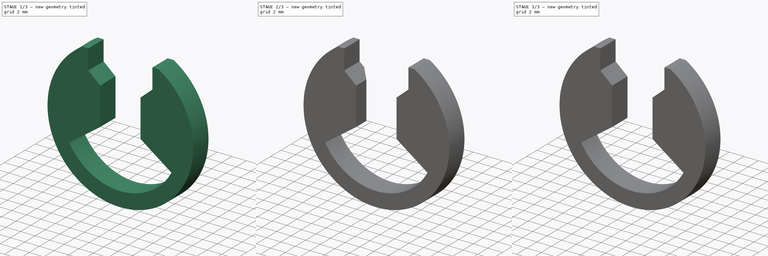
[diagram: build sequence overview — one tinted view per stage of 3, left to right]
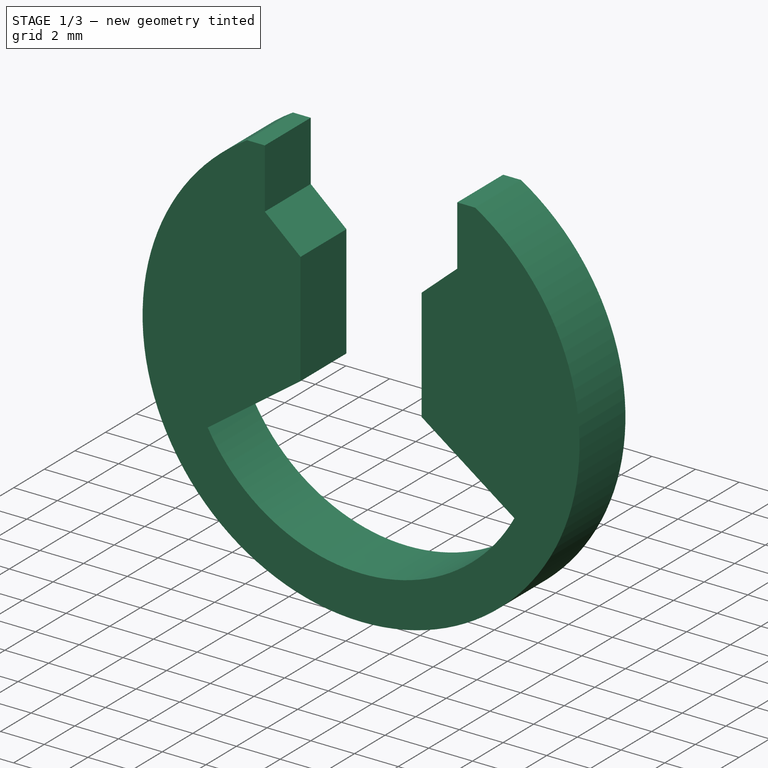
[diagram: stage 1 of 3 — iso view after this stage's code; geometry added in this stage tinted green]
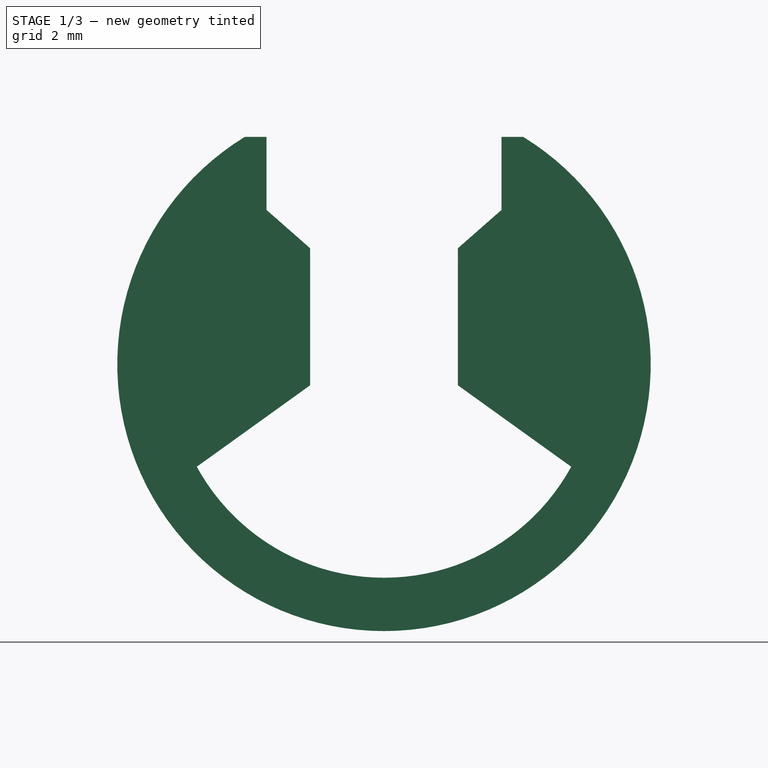
[diagram: stage 1 of 3 — front view after this stage's code; geometry added in this stage tinted green]
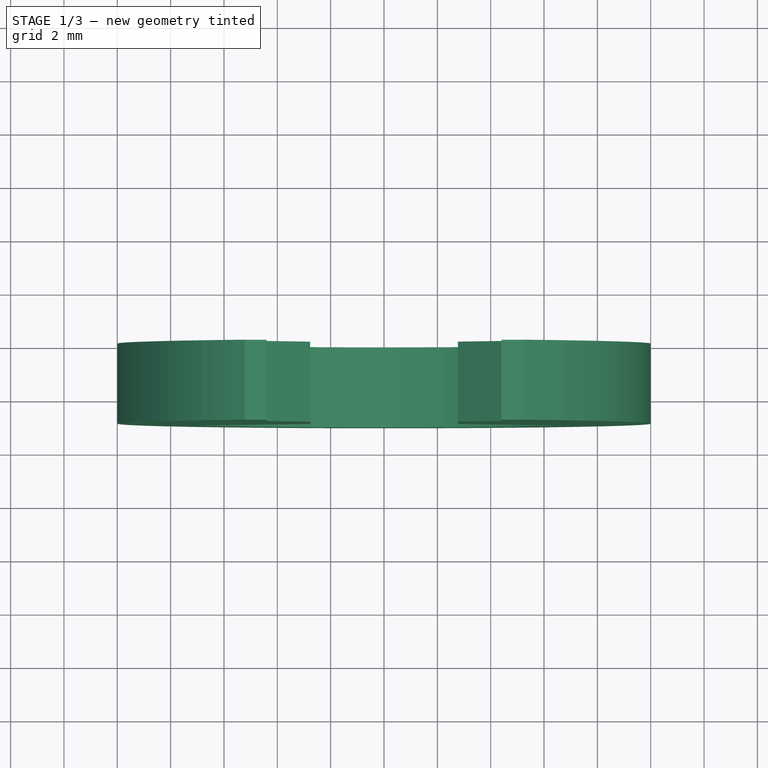
[diagram: stage 1 of 3 — top view after this stage's code; geometry added in this stage tinted green]
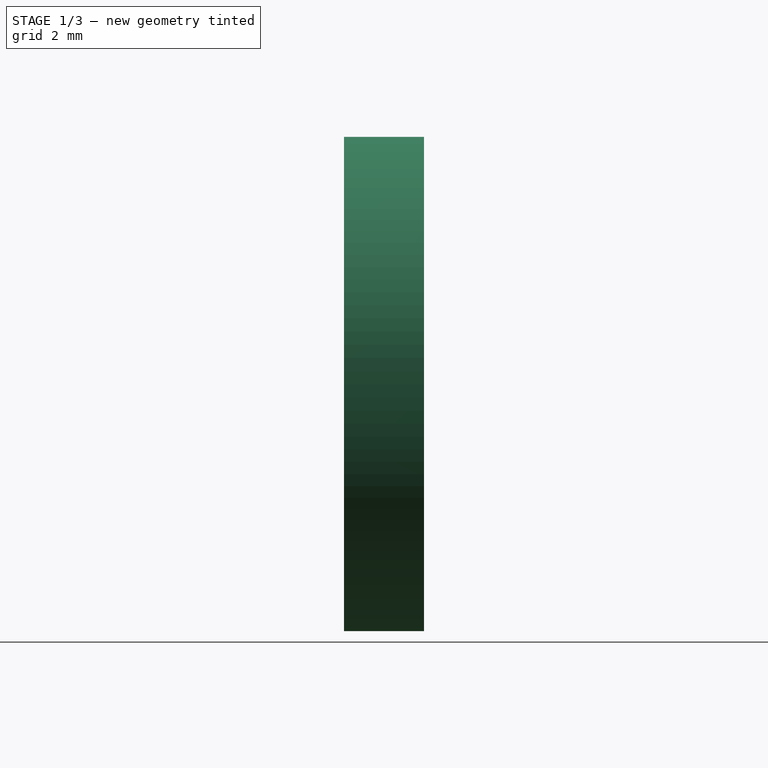
[diagram: stage 1 of 3 — right view after this stage's code; geometry added in this stage tinted green]
FCSTD DOCUMENT  (FreeCAD 0.18R16131 (Git))
Label: support poignee porte seat lock
License: All rights reserved
LicenseURL: http://en.wikipedia.org/wiki/All_rights_reserved
objects: PartDesign::Chamfer×3, Sketcher::SketchObject×1, PartDesign::Pad×1, PartDesign::Mirrored×1, PartDesign::Body×1
note: 8 computed .brp shape members not serialized (recipe doc carries the construction recipe); baked Part::Feature solids carry a one-line shape summary decoded from their .brp

FEATURE [Sketcher::SketchObject] Sketch
  MapMode = 5
  Placement = pos=(0,0,0) rot=(1,0,0;1.5708rad)
  Support = -> [XZ_Plane]
  sketch-geometry (16):
    g0: ArcOfCircle CenterX=0 CenterY=0 CenterZ=0 NormalX=0 NormalY=0 NormalZ=1 AngleXU=0 Radius=10 StartAngle=2.12017 EndAngle=4.71239
    g1: ArcOfCircle CenterX=0 CenterY=0 CenterZ=0 NormalX=0 NormalY=0 NormalZ=1 AngleXU=0 Radius=8 StartAngle=3.64195 EndAngle=4.71239
    g2: LineSegment [constr] StartX=-2 StartY=17.3439 StartZ=0 EndX=2 EndY=17.3439 EndZ=0
    g3: LineSegment [constr] StartX=2 StartY=17.3439 StartZ=0 EndX=2 EndY=-20.8108 EndZ=0
    g4: LineSegment [constr] StartX=2 StartY=-20.8108 StartZ=0 EndX=-2 EndY=-20.8108 EndZ=0
    g5: LineSegment [constr] StartX=-2 StartY=-20.8108 StartZ=0 EndX=-2 EndY=17.3439 EndZ=0
    g6: LineSegment [constr] StartX=-6.5 StartY=-4.66369 StartZ=0 EndX=6.5 EndY=-4.66369 EndZ=0
    g7: ArcOfCircle [constr] CenterX=0 CenterY=0 CenterZ=0 NormalX=0 NormalY=0 NormalZ=1 AngleXU=0 Radius=8 StartAngle=4.71239 EndAngle=9.42478
    g8: LineSegment [constr] StartX=-3.5 StartY=7.19375 StartZ=0 EndX=3.5 EndY=7.19375 EndZ=0
    g9: GeomPoint X=-10 Y=0 Z=0
    g10: LineSegment StartX=-4.40436 StartY=8.52851 StartZ=0 EndX=-5.22154 EndY=8.52851 EndZ=0
    g11: LineSegment StartX=0 StartY=-8 StartZ=0 EndX=0 EndY=-10 EndZ=0
    g12: LineSegment StartX=-4.40436 StartY=8.52851 StartZ=0 EndX=-4.40436 EndY=5.79 EndZ=0
    g13: LineSegment StartX=-4.40436 StartY=5.79 StartZ=0 EndX=-2.77128 EndY=4.35487 EndZ=0
    g14: LineSegment StartX=-2.77128 StartY=4.35487 StartZ=0 EndX=-2.77128 EndY=-0.78556 EndZ=0
    g15: LineSegment StartX=-2.77128 StartY=-0.78556 StartZ=0 EndX=-7.0193 EndY=-3.83789 EndZ=0
  constraints (38):
    c: Coincident(g0,g-1)
    c: Coincident(g1,g0)
    c: Coincident(g2,g3)
    c: Coincident(g3,g4)
    c: Coincident(g4,g5)
    c: Coincident(g5,g2)
    c: Horizontal(g4)
    c: Vertical(g3)
    c: Vertical(g5)
    c: Diameter(g1) = 16
    c: DistanceX(g4,g4) = 4
    c: Horizontal(g6)
    c: DistanceX(g6,g6) = 13
    c: PointOnObject(g6,g1)
    c: Coincident(g7,g0)
    c: Coincident(g7,g1)
    c: Horizontal(g8)
    c: DistanceX(g8,g8) = 7
    c: PointOnObject(g8,g7)
    c: PointOnObject(g8,g7)
    c: PointOnObject(g9,g0)
    c: PointOnObject(g9,g-1)
    c: Horizontal(g10)
    c: PointOnObject(g6,g1)
    c: PointOnObject(g1,g-2)
    c: Coincident(g0,g10)
    c: DistanceX(g9,g7) = 2
    c: PointOnObject(g0,g-2)
    c: Coincident(g11,g1)
    c: Coincident(g11,g0)
    c: Symmetric(g2,g2,g-2)
    c: Coincident(g12,g13)
    c: Coincident(g13,g14)
    c: Vertical(g14)
    c: Coincident(g14,g15)
    c: Coincident(g15,g1)
    c: Vertical(g12)
    c: Coincident(g12,g10)
FEATURE [PartDesign::Pad] Pad
  Length = 3
  Length2 = 100
  Placement = pos=(0,0,0) rot=(1,0,0;1.5708rad)
  Profile = -> Sketch
  Type = 0
FEATURE [PartDesign::Mirrored] Mirrored
  BaseFeature = -> Pad
  MirrorPlane = -> Sketch [V_Axis]
  Originals = -> [Pad]
  Placement = pos=(0,0,0) rot=(1,0,0;1.5708rad)
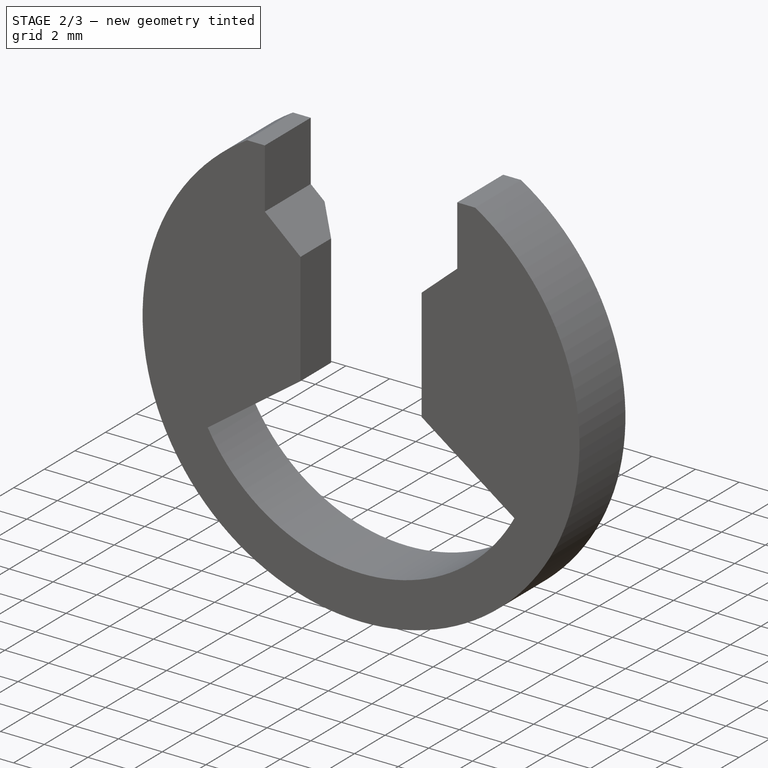
[diagram: stage 2 of 3 — iso view after this stage's code; geometry added in this stage tinted green]
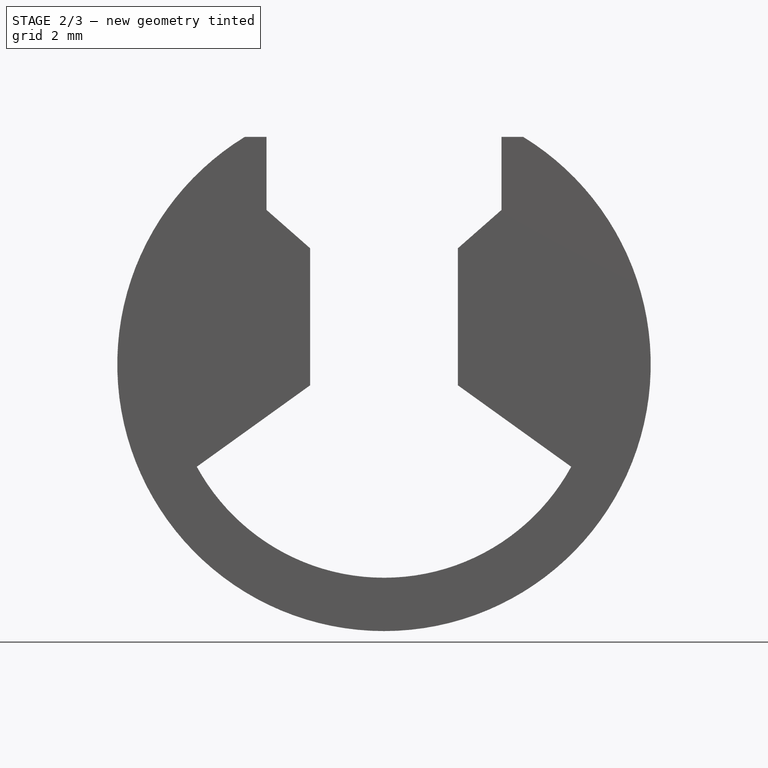
[diagram: stage 2 of 3 — front view after this stage's code; geometry added in this stage tinted green]
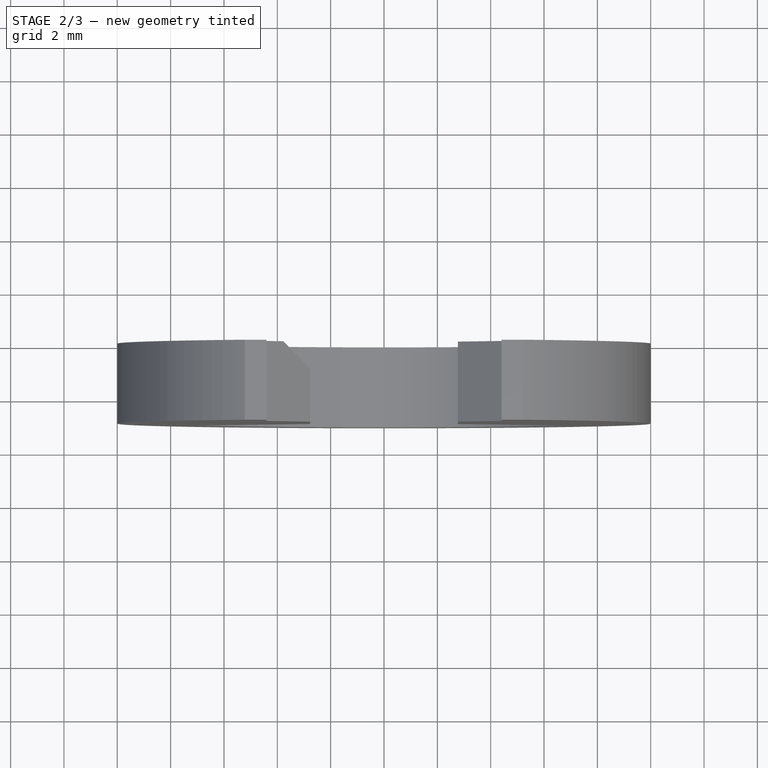
[diagram: stage 2 of 3 — top view after this stage's code; geometry added in this stage tinted green]
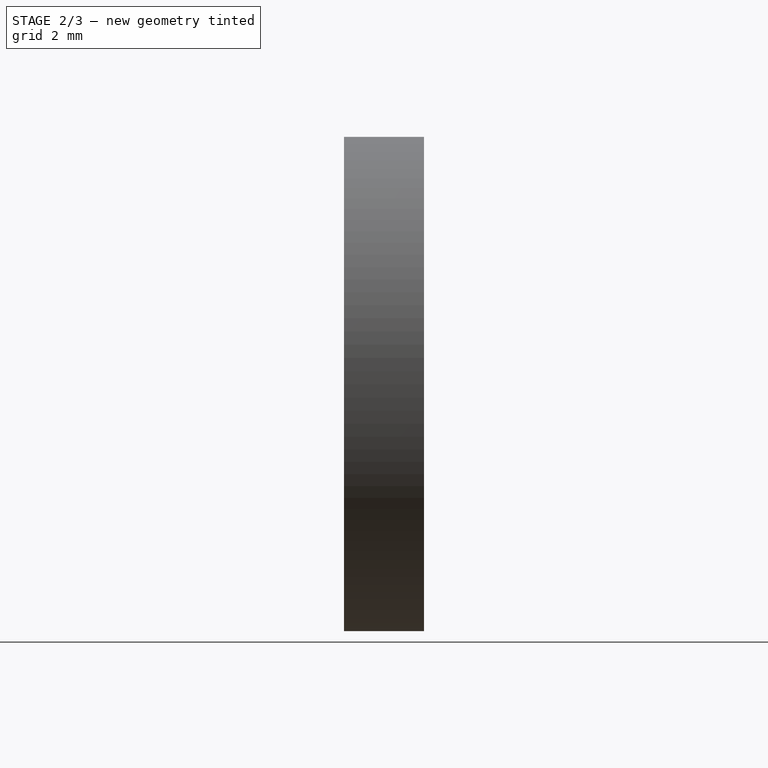
[diagram: stage 2 of 3 — right view after this stage's code; geometry added in this stage tinted green]
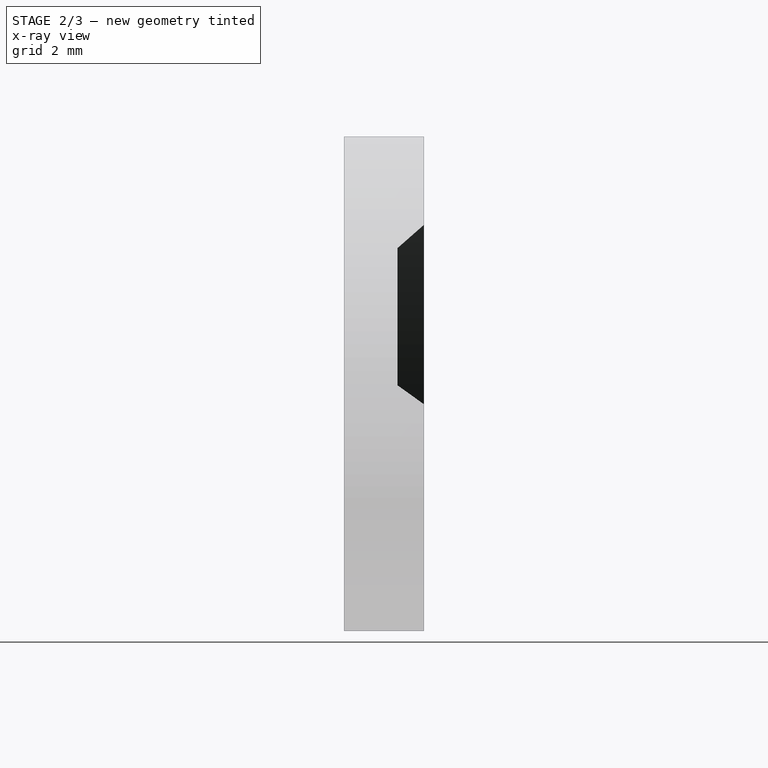
[diagram: stage 2 of 3 — x-ray composite at the right view; earlier geometry ghosted, this stage's added geometry solid]
FEATURE [PartDesign::Chamfer] Chamfer001
  Base = -> Mirrored [Edge14]
  BaseFeature = -> Mirrored
  Placement = pos=(0,0,0) rot=(1,0,0;1.5708rad)
  Size = 1
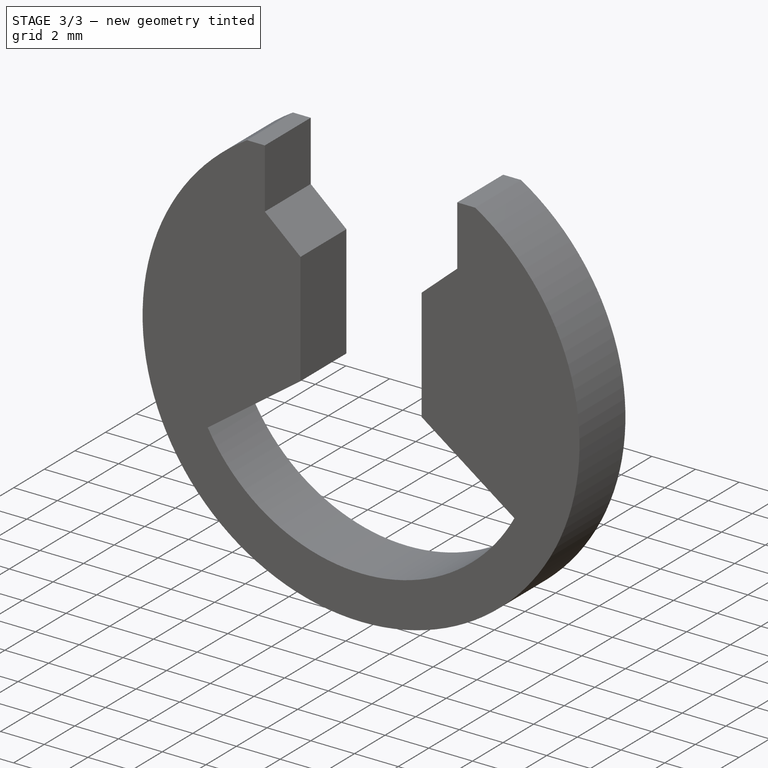
[diagram: stage 3 of 3 — iso view after this stage's code; geometry added in this stage tinted green]
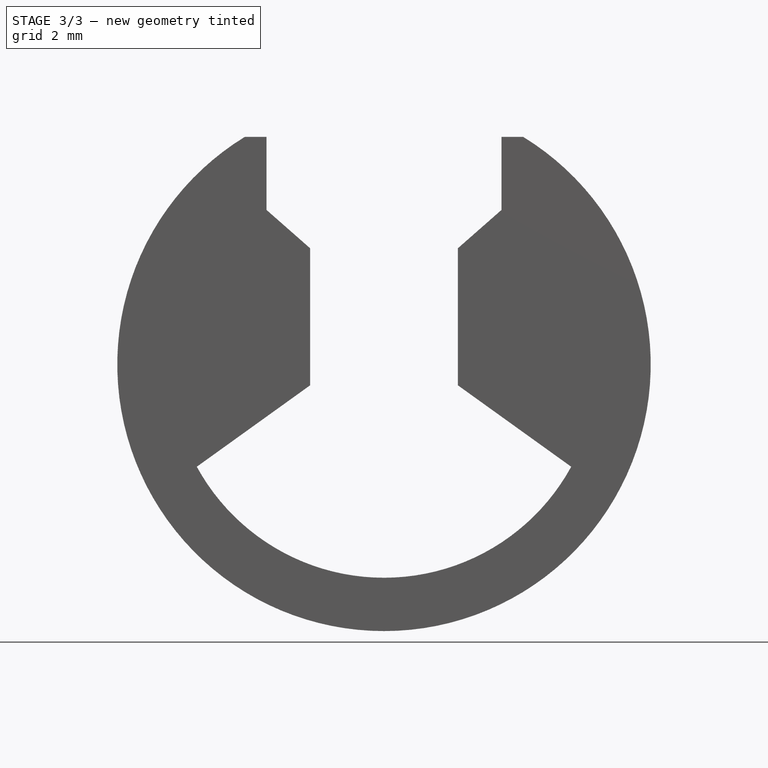
[diagram: stage 3 of 3 — front view after this stage's code; geometry added in this stage tinted green]
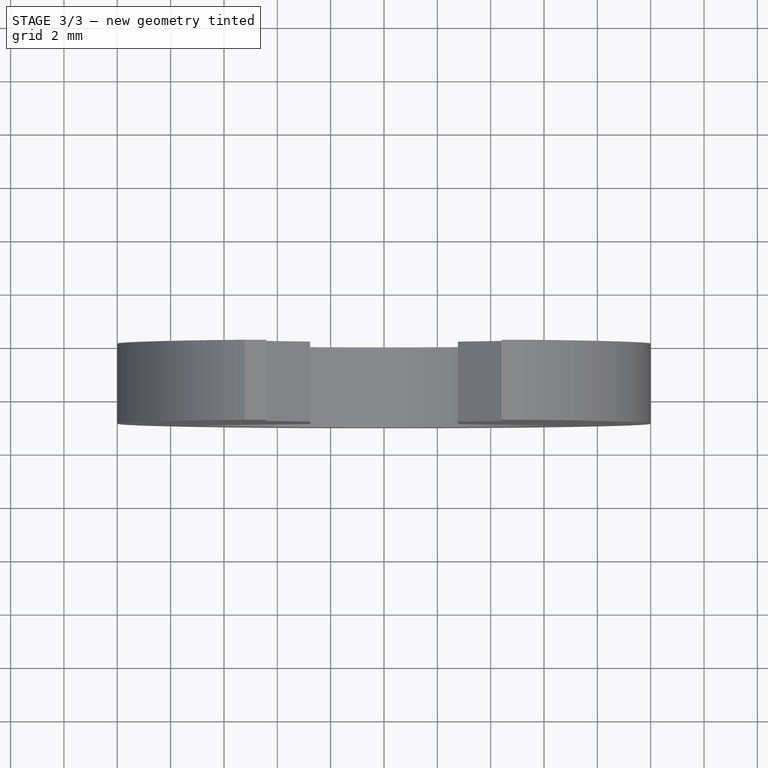
[diagram: stage 3 of 3 — top view after this stage's code; geometry added in this stage tinted green]
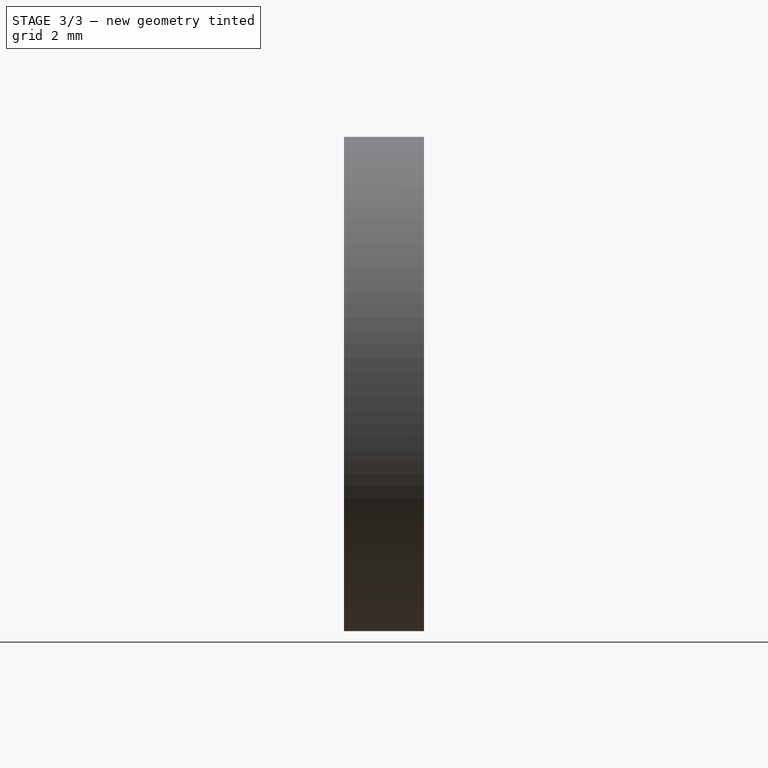
[diagram: stage 3 of 3 — right view after this stage's code; geometry added in this stage tinted green]
FEATURE [PartDesign::Chamfer] Chamfer
  Base = -> Mirrored [Edge9]
  BaseFeature = -> Mirrored
  Placement = pos=(0,0,0) rot=(1,0,0;1.5708rad)
  Size = 1
FEATURE [PartDesign::Chamfer] Chamfer002
  Base = -> Chamfer001 [Edge24]
  BaseFeature = -> Chamfer001
  Placement = pos=(0,0,0) rot=(1,0,0;1.5708rad)
  Size = 1
FEATURE [PartDesign::Body] Body
  Group = -> [Sketch,Pad,Mirrored,Chamfer,Chamfer001,Chamfer002]
  Origin = -> Origin
  Tip = -> Chamfer002
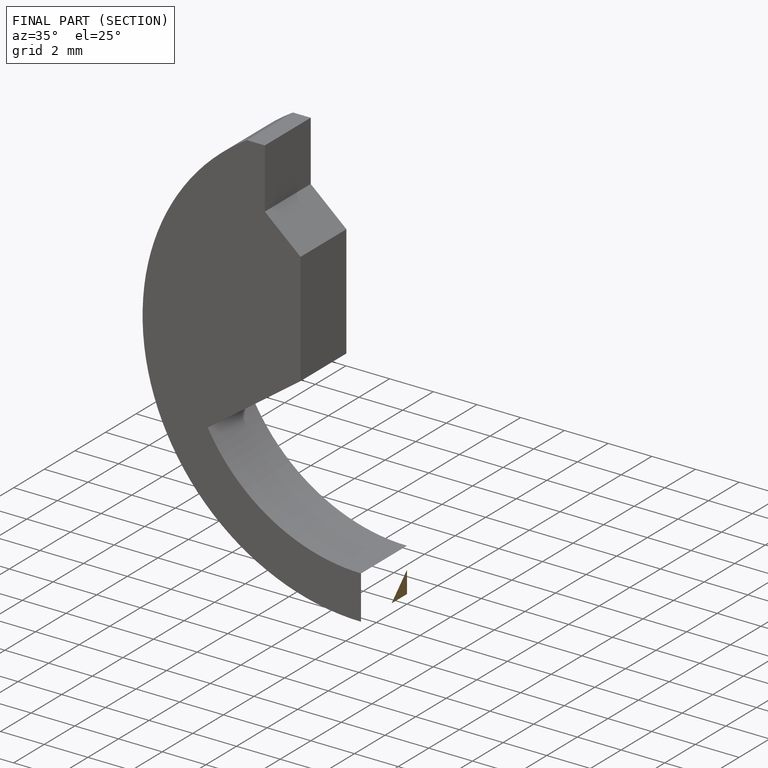
[diagram: finished part — half-section view (interior)]
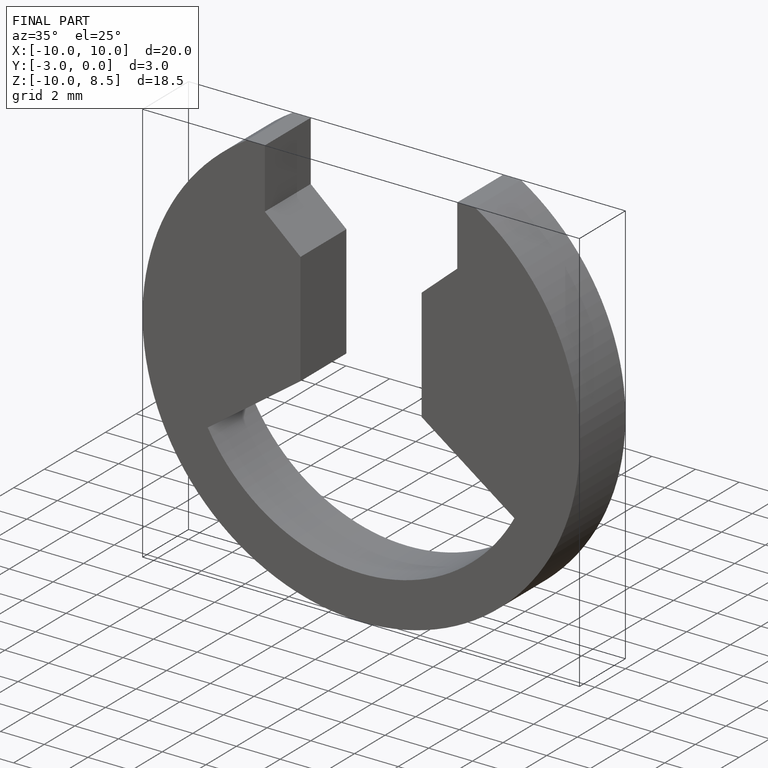
[diagram: finished part — iso view with bounding-box wireframe]
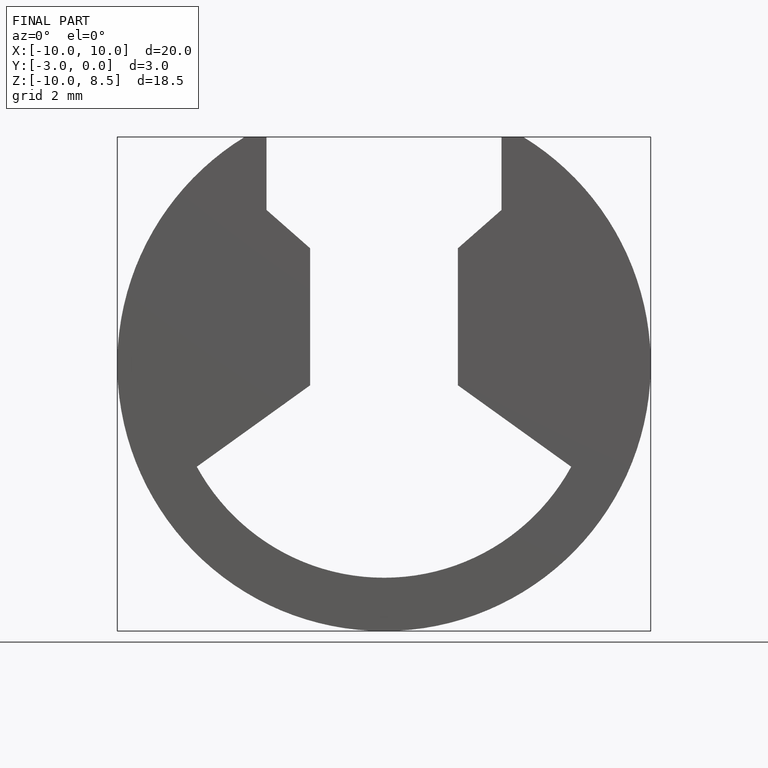
[diagram: finished part — front view with bounding-box wireframe]
